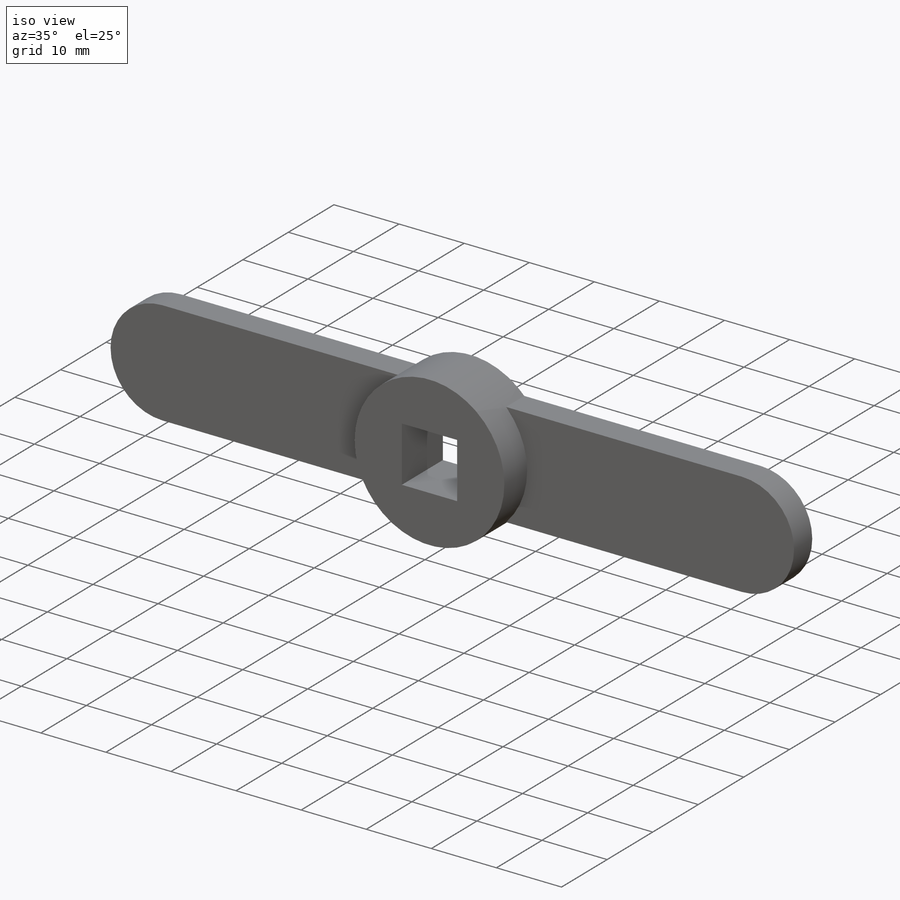
[diagram: iso view]
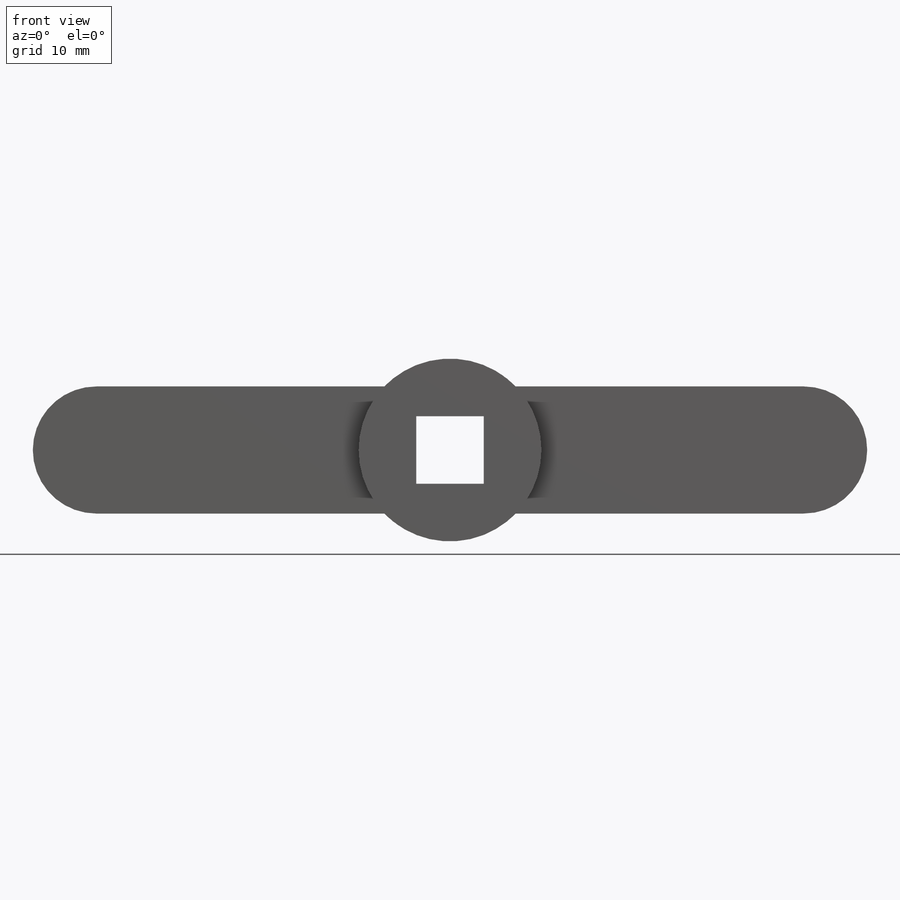
[diagram: front view]
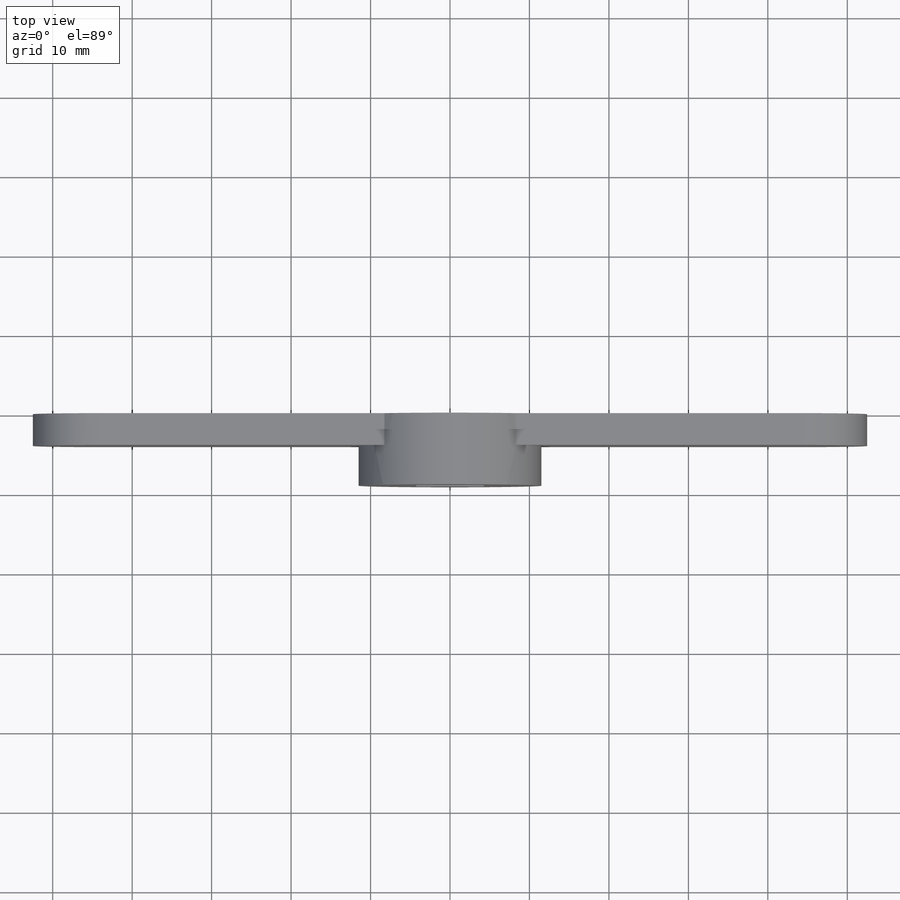
[diagram: top view]
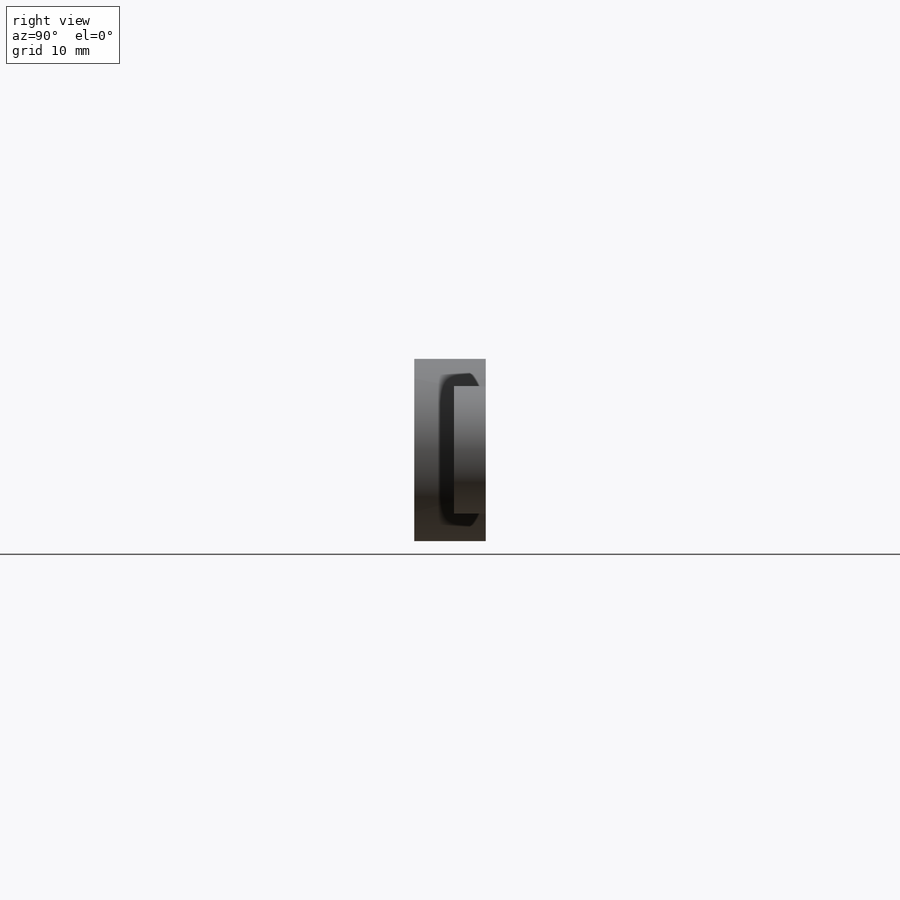
[diagram: right view]
SOLIDWORKS PART (.sldprt)
format: sldprt  version: not decoded by parser v0  size: 214,016 bytes
history: native  units: mm
features: plane x3, sketch x3, extrude x2, material x1, cut_extrude x1 (+9 scaffold rows collapsed)
feature tree (19):
  scaffold x9  (default folders/planes/origin — collapsed)
  material  "Сталь"
  plane  "Спереди"
  plane  "Сверху"
  plane  "Справа"
  sketch  "Эскиз1"  dims[c1.D2=8.0mm c1.D1=16.0mm c2.D2=105.0mm]
  extrude  "Бобышка-Вытянуть1"  Depth=4mm
  sketch  "Эскиз2"  dims[D1=23.0mm]
  extrude  "Бобышка-Вытянуть2"  Depth=9mm
  sketch  "Эскиз3"  dims[D1=8.5mm]
  cut_extrude  "Вырез-Вытянуть1"  [1 undecoded]
decode coverage: 5 of 6 modeling features carry decoded parameters
note: 1 parameter value undecoded
note: suppression state not decoded; provenance and decode notes live in map.json
